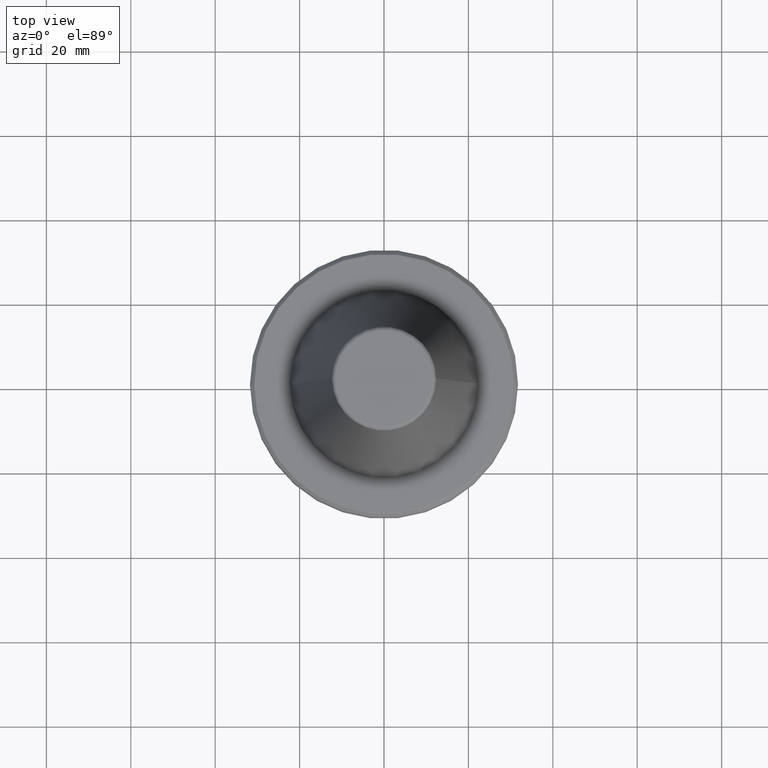
[diagram: clean part render]
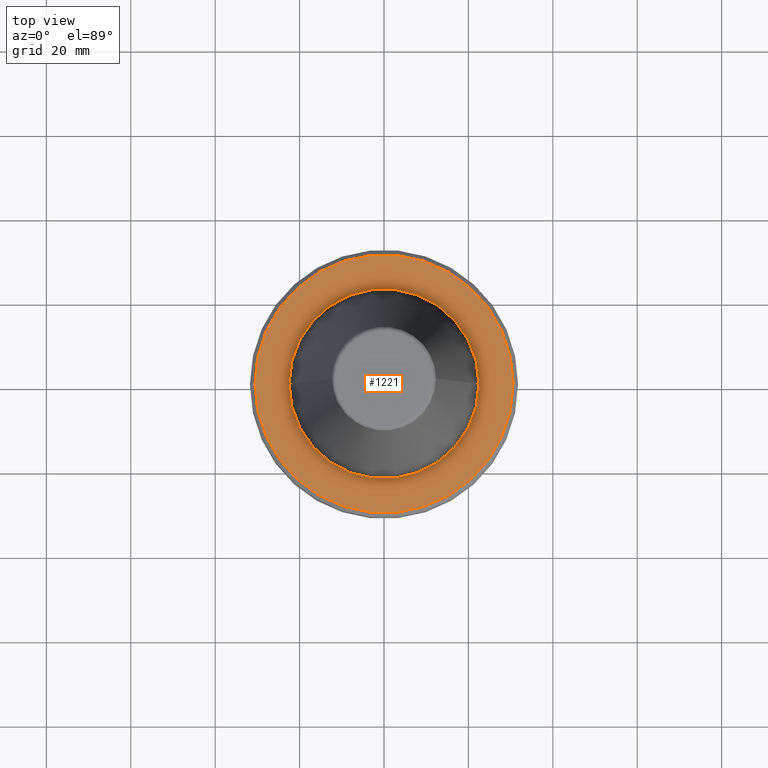
[diagram: same view with one face highlighted and labeled with its STEP entity id]
A machine part, top view. The second image highlights one B-rep face of the part: STEP entity #1221.
In plain terms, the highlighted planar face has unit normal (0, -0, 1).
Its self-contained STEP definition (entity closure, byte-faithful):
#5 = VERTEX_POINT ( 'NONE', #1034 ) ;
#26 = FACE_BOUND ( 'NONE', #932, .T. ) ;
#65 = CARTESIAN_POINT ( 'NONE',  ( -22.50000000000000000, 2.755455298081544800E-015, -3.199999999999996600 ) ) ;
#80 = CARTESIAN_POINT ( 'NONE',  ( 0.0000000000000000000, 0.0000000000000000000, -3.200000000000000200 ) ) ;
#101 = EDGE_CURVE ( 'NONE', #801, #1245, #996, .T. ) ;
#177 = EDGE_LOOP ( 'NONE', ( #844, #470 ) ) ;
#267 = CARTESIAN_POINT ( 'NONE',  ( 0.0000000000000000000, 0.0000000000000000000, -3.199999999999994400 ) ) ;
#363 = DIRECTION ( 'NONE',  ( 1.000000000000000000, 0.0000000000000000000, 0.0000000000000000000 ) ) ;
#419 = DIRECTION ( 'NONE',  ( -0.0000000000000000000, -0.0000000000000000000, 1.000000000000000000 ) ) ;
#451 = ORIENTED_EDGE ( 'NONE', *, *, #1033, .F. ) ;
#470 = ORIENTED_EDGE ( 'NONE', *, *, #101, .T. ) ;
#476 = DIRECTION ( 'NONE',  ( 0.0000000000000000000, -0.0000000000000000000, 1.000000000000000000 ) ) ;
#537 = VERTEX_POINT ( 'NONE', #65 ) ;
#573 = DIRECTION ( 'NONE',  ( -0.0000000000000000000, -0.0000000000000000000, 1.000000000000000000 ) ) ;
#581 = CARTESIAN_POINT ( 'NONE',  ( -30.58431457505076200, 3.762817415969875600E-015, -3.199999999999994400 ) ) ;
#774 = DIRECTION ( 'NONE',  ( 1.000000000000000000, 0.0000000000000000000, 0.0000000000000000000 ) ) ;
#794 = FACE_OUTER_BOUND ( 'NONE', #177, .T. ) ;
#801 = VERTEX_POINT ( 'NONE', #581 ) ;
#829 = CIRCLE ( 'NONE', #1153, 22.50000000000000000 ) ;
#844 = ORIENTED_EDGE ( 'NONE', *, *, #1242, .T. ) ;
#851 = PLANE ( 'NONE',  #903 ) ;
#882 = AXIS2_PLACEMENT_3D ( 'NONE', #1152, #573, #1254 ) ;
#903 = AXIS2_PLACEMENT_3D ( 'NONE', #80, #476, #1148 ) ;
#932 = EDGE_LOOP ( 'NONE', ( #451, #1232 ) ) ;
#953 = DIRECTION ( 'NONE',  ( -0.0000000000000000000, -0.0000000000000000000, 1.000000000000000000 ) ) ;
#992 = CIRCLE ( 'NONE', #882, 30.58431457505076200 ) ;
#996 = CIRCLE ( 'NONE', #1029, 30.58431457505076200 ) ;
#999 = CARTESIAN_POINT ( 'NONE',  ( 0.0000000000000000000, 0.0000000000000000000, -3.199999999999994400 ) ) ;
#1029 = AXIS2_PLACEMENT_3D ( 'NONE', #1177, #1060, #774 ) ;
#1033 = EDGE_CURVE ( 'NONE', #5, #537, #1144, .T. ) ;
#1034 = CARTESIAN_POINT ( 'NONE',  ( 22.50000000000000000, 0.0000000000000000000, -3.199999999999996600 ) ) ;
#1051 = CARTESIAN_POINT ( 'NONE',  ( 30.58431457505076200, 0.0000000000000000000, -3.199999999999994400 ) ) ;
#1060 = DIRECTION ( 'NONE',  ( -0.0000000000000000000, -0.0000000000000000000, 1.000000000000000000 ) ) ;
#1094 = DIRECTION ( 'NONE',  ( 1.000000000000000000, 0.0000000000000000000, 0.0000000000000000000 ) ) ;
#1144 = CIRCLE ( 'NONE', #1260, 22.50000000000000000 ) ;
#1148 = DIRECTION ( 'NONE',  ( 1.000000000000000000, 0.0000000000000000000, 0.0000000000000000000 ) ) ;
#1152 = CARTESIAN_POINT ( 'NONE',  ( 0.0000000000000000000, 0.0000000000000000000, -3.199999999999994400 ) ) ;
#1153 = AXIS2_PLACEMENT_3D ( 'NONE', #267, #953, #363 ) ;
#1177 = CARTESIAN_POINT ( 'NONE',  ( 0.0000000000000000000, 0.0000000000000000000, -3.199999999999994400 ) ) ;
#1204 = EDGE_CURVE ( 'NONE', #537, #5, #829, .T. ) ;
#1221 = ADVANCED_FACE ( 'NONE', ( #794, #26 ), #851, .T. ) ;
#1232 = ORIENTED_EDGE ( 'NONE', *, *, #1204, .F. ) ;
#1242 = EDGE_CURVE ( 'NONE', #1245, #801, #992, .T. ) ;
#1245 = VERTEX_POINT ( 'NONE', #1051 ) ;
#1254 = DIRECTION ( 'NONE',  ( 1.000000000000000000, 0.0000000000000000000, 0.0000000000000000000 ) ) ;
#1260 = AXIS2_PLACEMENT_3D ( 'NONE', #999, #419, #1094 ) ;